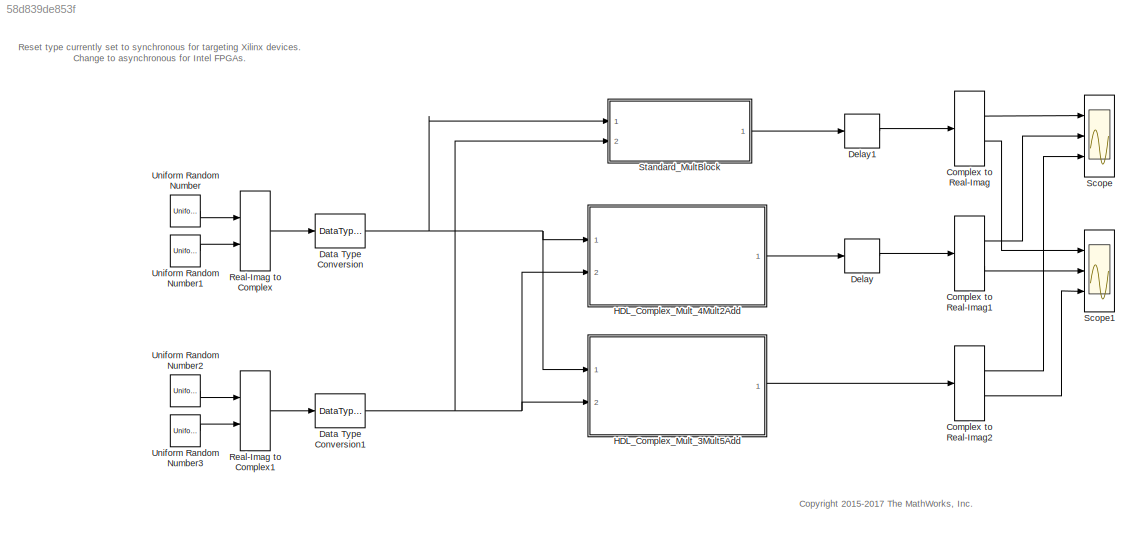
MODEL slx_58d839de853f
KIND model
CONFIG AbsTol = auto
CONFIG EnableMultiTasking = off
CONFIG FixedStep = auto
CONFIG MaxStep = auto
CONFIG MinStep = auto
CONFIG PostLoadFcn = D1 = 1;\nD2 = 1;\nD3 = 1;\nD4 = 1;\nD5 = 1;
CONFIG RelTol = 1e-3
CONFIG SampleTimeConstraint = Unconstrained
CONFIG Solver = FixedStepDiscrete
CONFIG SolverName = FixedStepDiscrete
CONFIG StartTime = 0.0
CONFIG StopTime = 20
BLOCK [ComplexToRealImag] Complex to Real-Imag
  Ports = [1, 2]
BLOCK [ComplexToRealImag] Complex to Real-Imag1
  Ports = [1, 2]
BLOCK [ComplexToRealImag] Complex to Real-Imag2
  Ports = [1, 2]
BLOCK [DataTypeConversion] Data Type Conversion
  OutDataTypeStr = fixdt(1,18,17)
  RndMeth = Floor
  SaturateOnIntegerOverflow = off
BLOCK [DataTypeConversion] Data Type Conversion1
  OutDataTypeStr = fixdt(1,18,17)
  RndMeth = Floor
  SaturateOnIntegerOverflow = off
BLOCK [Delay] Delay
  DelayLength = D2+D3
  InputPortMap = u0
  Ports = [1, 1]
BLOCK [Delay] Delay1
  DelayLength = D2+D3+D4
  InputPortMap = u0
  Ports = [1, 1]
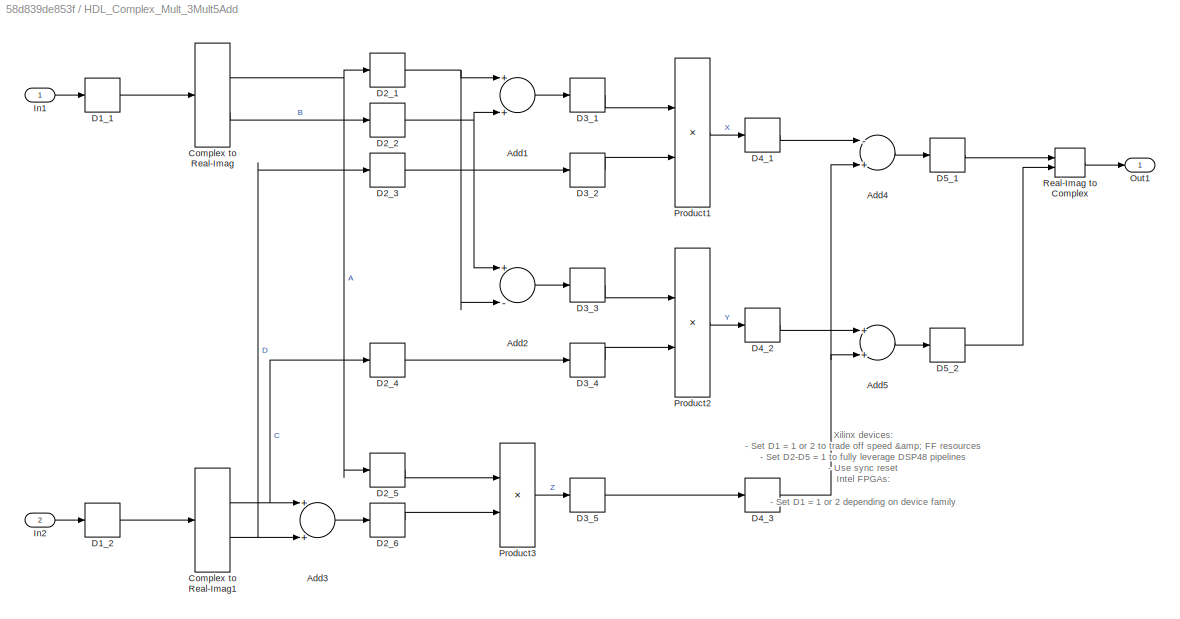
BLOCK [SubSystem] HDL_Complex_Mult_3Mult5Add
  Ports = [2, 1]
  RequestExecContextInheritance = off
BLOCK [Sum] HDL_Complex_Mult_3Mult5Add/Add1
  InputSameDT = off
  OutDataTypeStr = Inherit: Inherit via internal rule
  Ports = [2, 1]
  SaturateOnIntegerOverflow = off
BLOCK [Sum] HDL_Complex_Mult_3Mult5Add/Add2
  InputSameDT = off
  Inputs = +-
  OutDataTypeStr = Inherit: Inherit via internal rule
  Ports = [2, 1]
  SaturateOnIntegerOverflow = off
BLOCK [Sum] HDL_Complex_Mult_3Mult5Add/Add3
  InputSameDT = off
  OutDataTypeStr = Inherit: Inherit via internal rule
  Ports = [2, 1]
  SaturateOnIntegerOverflow = off
BLOCK [Sum] HDL_Complex_Mult_3Mult5Add/Add4
  InputSameDT = off
  Inputs = -+
  OutDataTypeStr = Inherit: Inherit via internal rule
  Ports = [2, 1]
  SaturateOnIntegerOverflow = off
BLOCK [Sum] HDL_Complex_Mult_3Mult5Add/Add5
  InputSameDT = off
  OutDataTypeStr = Inherit: Inherit via internal rule
  Ports = [2, 1]
  SaturateOnIntegerOverflow = off
BLOCK [ComplexToRealImag] HDL_Complex_Mult_3Mult5Add/Complex to Real-Imag
  Ports = [1, 2]
BLOCK [ComplexToRealImag] HDL_Complex_Mult_3Mult5Add/Complex to Real-Imag1
  Ports = [1, 2]
BLOCK [Delay] HDL_Complex_Mult_3Mult5Add/D1_1
  DelayLength = D1
  InputPortMap = u0
  Ports = [1, 1]
BLOCK [Delay] HDL_Complex_Mult_3Mult5Add/D1_2
  DelayLength = D1
  InputPortMap = u0
  Ports = [1, 1]
BLOCK [Delay] HDL_Complex_Mult_3Mult5Add/D2_1
  DelayLength = D2
  InputPortMap = u0
  Ports = [1, 1]
BLOCK [Delay] HDL_Complex_Mult_3Mult5Add/D2_2
  DelayLength = D2
  InputPortMap = u0
  Ports = [1, 1]
BLOCK [Delay] HDL_Complex_Mult_3Mult5Add/D2_3
  DelayLength = D2
  InputPortMap = u0
  Ports = [1, 1]
BLOCK [Delay] HDL_Complex_Mult_3Mult5Add/D2_4
  DelayLength = D2
  InputPortMap = u0
  Ports = [1, 1]
BLOCK [Delay] HDL_Complex_Mult_3Mult5Add/D2_5
  DelayLength = D2
  InputPortMap = u0
  Ports = [1, 1]
BLOCK [Delay] HDL_Complex_Mult_3Mult5Add/D2_6
  DelayLength = D2
  InputPortMap = u0
  Ports = [1, 1]
BLOCK [Delay] HDL_Complex_Mult_3Mult5Add/D3_1
  DelayLength = D3
  InputPortMap = u0
  Ports = [1, 1]
BLOCK [Delay] HDL_Complex_Mult_3Mult5Add/D3_2
  DelayLength = D3
  InputPortMap = u0
  Ports = [1, 1]
BLOCK [Delay] HDL_Complex_Mult_3Mult5Add/D3_3
  DelayLength = D3
  InputPortMap = u0
  Ports = [1, 1]
BLOCK [Delay] HDL_Complex_Mult_3Mult5Add/D3_4
  DelayLength = D3
  InputPortMap = u0
  Ports = [1, 1]
BLOCK [Delay] HDL_Complex_Mult_3Mult5Add/D3_5
  DelayLength = D3
  InputPortMap = u0
  Ports = [1, 1]
BLOCK [Delay] HDL_Complex_Mult_3Mult5Add/D4_1
  DelayLength = D4
  InputPortMap = u0
  Ports = [1, 1]
BLOCK [Delay] HDL_Complex_Mult_3Mult5Add/D4_2
  DelayLength = D4
  InputPortMap = u0
  Ports = [1, 1]
BLOCK [Delay] HDL_Complex_Mult_3Mult5Add/D4_3
  DelayLength = D4
  InputPortMap = u0
  Ports = [1, 1]
BLOCK [Delay] HDL_Complex_Mult_3Mult5Add/D5_1
  DelayLength = D5
  InputPortMap = u0
  Ports = [1, 1]
BLOCK [Delay] HDL_Complex_Mult_3Mult5Add/D5_2
  DelayLength = D5
  InputPortMap = u0
  Ports = [1, 1]
BLOCK [Inport] HDL_Complex_Mult_3Mult5Add/In1
  IconDisplay = Port number
BLOCK [Inport] HDL_Complex_Mult_3Mult5Add/In2
  IconDisplay = Port number
  Port = 2
BLOCK [Outport] HDL_Complex_Mult_3Mult5Add/Out1
  IconDisplay = Port number
BLOCK [Product] HDL_Complex_Mult_3Mult5Add/Product1
  InputSameDT = off
  OutDataTypeStr = Inherit: Inherit via internal rule
  Ports = [2, 1]
  RndMeth = Floor
  SaturateOnIntegerOverflow = off
BLOCK [Product] HDL_Complex_Mult_3Mult5Add/Product2
  InputSameDT = off
  OutDataTypeStr = Inherit: Inherit via internal rule
  Ports = [2, 1]
  RndMeth = Floor
  SaturateOnIntegerOverflow = off
BLOCK [Product] HDL_Complex_Mult_3Mult5Add/Product3
  InputSameDT = off
  OutDataTypeStr = Inherit: Inherit via internal rule
  Ports = [2, 1]
  RndMeth = Floor
  SaturateOnIntegerOverflow = off
BLOCK [RealImagToComplex] HDL_Complex_Mult_3Mult5Add/Real-Imag to Complex
  Ports = [2, 1]
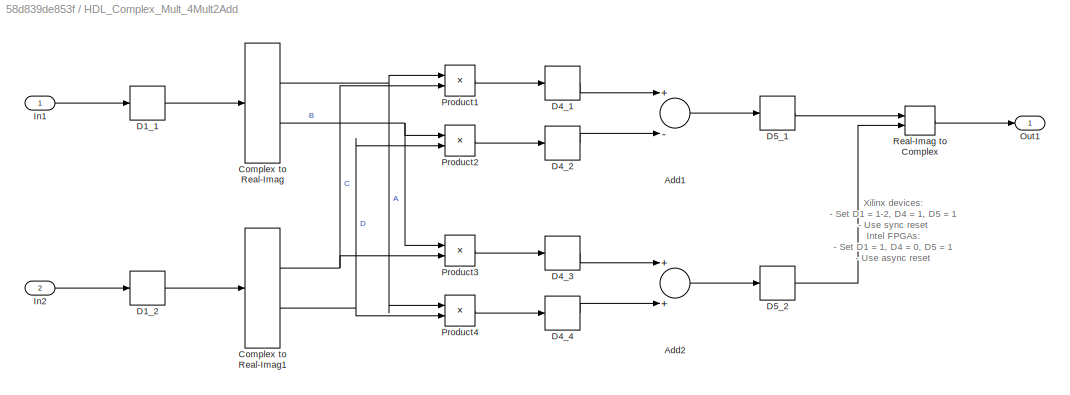
BLOCK [SubSystem] HDL_Complex_Mult_4Mult2Add
  Ports = [2, 1]
  RequestExecContextInheritance = off
BLOCK [Sum] HDL_Complex_Mult_4Mult2Add/Add1
  InputSameDT = off
  Inputs = +-
  OutDataTypeStr = Inherit: Inherit via internal rule
  Ports = [2, 1]
  SaturateOnIntegerOverflow = off
BLOCK [Sum] HDL_Complex_Mult_4Mult2Add/Add2
  InputSameDT = off
  OutDataTypeStr = Inherit: Inherit via internal rule
  Ports = [2, 1]
  SaturateOnIntegerOverflow = off
BLOCK [ComplexToRealImag] HDL_Complex_Mult_4Mult2Add/Complex to Real-Imag
  Ports = [1, 2]
BLOCK [ComplexToRealImag] HDL_Complex_Mult_4Mult2Add/Complex to Real-Imag1
  Ports = [1, 2]
BLOCK [Delay] HDL_Complex_Mult_4Mult2Add/D1_1
  DelayLength = D1
  InputPortMap = u0
  Ports = [1, 1]
BLOCK [Delay] HDL_Complex_Mult_4Mult2Add/D1_2
  DelayLength = D1
  InputPortMap = u0
  Ports = [1, 1]
BLOCK [Delay] HDL_Complex_Mult_4Mult2Add/D4_1
  DelayLength = D4
  InputPortMap = u0
  Ports = [1, 1]
BLOCK [Delay] HDL_Complex_Mult_4Mult2Add/D4_2
  DelayLength = D4
  InputPortMap = u0
  Ports = [1, 1]
BLOCK [Delay] HDL_Complex_Mult_4Mult2Add/D4_3
  DelayLength = D4
  InputPortMap = u0
  Ports = [1, 1]
BLOCK [Delay] HDL_Complex_Mult_4Mult2Add/D4_4
  DelayLength = D4
  InputPortMap = u0
  Ports = [1, 1]
BLOCK [Delay] HDL_Complex_Mult_4Mult2Add/D5_1
  DelayLength = D5
  InputPortMap = u0
  Ports = [1, 1]
BLOCK [Delay] HDL_Complex_Mult_4Mult2Add/D5_2
  DelayLength = D5
  InputPortMap = u0
  Ports = [1, 1]
BLOCK [Inport] HDL_Complex_Mult_4Mult2Add/In1
  IconDisplay = Port number
BLOCK [Inport] HDL_Complex_Mult_4Mult2Add/In2
  IconDisplay = Port number
  Port = 2
BLOCK [Outport] HDL_Complex_Mult_4Mult2Add/Out1
  IconDisplay = Port number
BLOCK [Product] HDL_Complex_Mult_4Mult2Add/Product1
  InputSameDT = off
  OutDataTypeStr = Inherit: Inherit via internal rule
  Ports = [2, 1]
  RndMeth = Floor
  SaturateOnIntegerOverflow = off
BLOCK [Product] HDL_Complex_Mult_4Mult2Add/Product2
  InputSameDT = off
  OutDataTypeStr = Inherit: Inherit via internal rule
  Ports = [2, 1]
  RndMeth = Floor
  SaturateOnIntegerOverflow = off
BLOCK [Product] HDL_Complex_Mult_4Mult2Add/Product3
  InputSameDT = off
  OutDataTypeStr = Inherit: Inherit via internal rule
  Ports = [2, 1]
  RndMeth = Floor
  SaturateOnIntegerOverflow = off
BLOCK [Product] HDL_Complex_Mult_4Mult2Add/Product4
  InputSameDT = off
  OutDataTypeStr = Inherit: Inherit via internal rule
  Ports = [2, 1]
  RndMeth = Floor
  SaturateOnIntegerOverflow = off
BLOCK [RealImagToComplex] HDL_Complex_Mult_4Mult2Add/Real-Imag to Complex
  Ports = [2, 1]
BLOCK [RealImagToComplex] Real-Imag to Complex
  Ports = [2, 1]
BLOCK [RealImagToComplex] Real-Imag to Complex1
  Ports = [2, 1]
BLOCK [Scope] Scope
  Floating = off
  NumInputPorts = 3
  Ports = [3]
  ScopeSpecificationString = Simulink.scopes.TimeScopeBlockCfg('CurrentConfiguration', extmgr.ConfigurationSet(extmgr.Configuration('Core','General UI',true),extmgr.Configuration('Core','Source UI',true),extmgr.Configuration('Sources','WiredSimulink',true),extmgr.Configuration('Visuals','Time Domain',true,'SerializedDisplays',{struct('MinYLimReal','-0.79406','MaxYLimReal','0.84396','YLabelReal','','MinYLimMag','0.00000','MaxY...<+1401ch>
BLOCK [Scope] Scope1
  Floating = off
  NumInputPorts = 3
  Ports = [3]
  ScopeSpecificationString = Simulink.scopes.TimeScopeBlockCfg('CurrentConfiguration', extmgr.ConfigurationSet(extmgr.Configuration('Core','General UI',true),extmgr.Configuration('Core','Source UI',true),extmgr.Configuration('Sources','WiredSimulink',true,'DataLoggingVariableName','ScopeData1'),extmgr.Configuration('Visuals','Time Domain',true,'SerializedDisplays',{struct('MinYLimReal','-0.09028','MaxYLimReal','0.81255','YLab...<+1415ch>
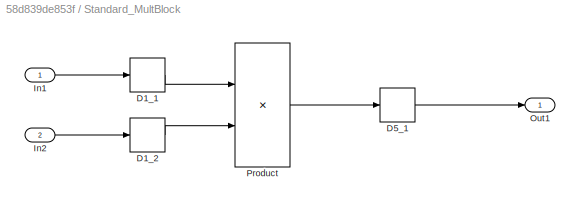
BLOCK [SubSystem] Standard_MultBlock
  Ports = [2, 1]
  RequestExecContextInheritance = off
BLOCK [Delay] Standard_MultBlock/D1_1
  DelayLength = D1
  InputPortMap = u0
  Ports = [1, 1]
BLOCK [Delay] Standard_MultBlock/D1_2
  DelayLength = D1
  InputPortMap = u0
  Ports = [1, 1]
BLOCK [Delay] Standard_MultBlock/D5_1
  DelayLength = D5
  InputPortMap = u0
  Ports = [1, 1]
BLOCK [Inport] Standard_MultBlock/In1
  IconDisplay = Port number
BLOCK [Inport] Standard_MultBlock/In2
  IconDisplay = Port number
  Port = 2
BLOCK [Outport] Standard_MultBlock/Out1
  IconDisplay = Port number
BLOCK [Product] Standard_MultBlock/Product
  InputSameDT = off
  OutDataTypeStr = fixdt(1,37,34)
  Ports = [2, 1]
  RndMeth = Floor
  SaturateOnIntegerOverflow = off
BLOCK [UniformRandomNumber] Uniform Random Number
  Minimum = 0
  SampleTime = 1
BLOCK [UniformRandomNumber] Uniform Random Number1
  Minimum = 0
  SampleTime = 1
  Seed = 1
BLOCK [UniformRandomNumber] Uniform Random Number2
  Minimum = 0
  SampleTime = 1
  Seed = 2
BLOCK [UniformRandomNumber] Uniform Random Number3
  Minimum = 0
  SampleTime = 1
  Seed = 3
ANNOTATION (root): Reset type currently set to synchronous for targeting Xilinx devices. Change to asynchronous for Intel FPGAs.
ANNOTATION (root): <copyright redacted>
ANNOTATION HDL_Complex_Mult_3Mult5Add: Xilinx devices: - Set D1 = 1 or 2 to trade off speed & FF resources - Set D2-D5 = 1 to fully leverage DSP48 pipelines - Use sync reset Intel FPGAs: - Set D1 = 1 or 2 depending on device family - Set D5 = 1; D2, D3, D4 = 0 - Use async reset
ANNOTATION HDL_Complex_Mult_4Mult2Add: Xilinx devices: - Set D1 = 1-2, D4 = 1, D5 = 1 - Use sync reset Intel FPGAs: - Set D1 = 1, D4 = 0, D5 = 1 - Use async reset
LINE Complex to Real-Imag1:1 -> Scope:2
LINE Complex to Real-Imag1:2 -> Scope1:2
LINE Complex to Real-Imag2:1 -> Scope:3
LINE Complex to Real-Imag2:2 -> Scope1:3
LINE Complex to Real-Imag:1 -> Scope:1
LINE Complex to Real-Imag:2 -> Scope1:1
NET Data Type Conversion1:1 -> HDL_Complex_Mult_3Mult5Add:2, HDL_Complex_Mult_4Mult2Add:2, Standard_MultBlock:2
NET Data Type Conversion:1 -> HDL_Complex_Mult_3Mult5Add:1, HDL_Complex_Mult_4Mult2Add:1, Standard_MultBlock:1
LINE Delay1:1 -> Complex to Real-Imag:1
LINE Delay:1 -> Complex to Real-Imag1:1
LINE HDL_Complex_Mult_3Mult5Add/Add1:1 -> HDL_Complex_Mult_3Mult5Add/D3_1:1
LINE HDL_Complex_Mult_3Mult5Add/Add2:1 -> HDL_Complex_Mult_3Mult5Add/D3_3:1
LINE HDL_Complex_Mult_3Mult5Add/Add3:1 -> HDL_Complex_Mult_3Mult5Add/D2_6:1
LINE HDL_Complex_Mult_3Mult5Add/Add4:1 -> HDL_Complex_Mult_3Mult5Add/D5_1:1
LINE HDL_Complex_Mult_3Mult5Add/Add5:1 -> HDL_Complex_Mult_3Mult5Add/D5_2:1
NET HDL_Complex_Mult_3Mult5Add/Complex to Real-Imag1:1 -> HDL_Complex_Mult_3Mult5Add/Add3:1, HDL_Complex_Mult_3Mult5Add/D2_4:1
NET HDL_Complex_Mult_3Mult5Add/Complex to Real-Imag1:2 -> HDL_Complex_Mult_3Mult5Add/Add3:2, HDL_Complex_Mult_3Mult5Add/D2_3:1
NET HDL_Complex_Mult_3Mult5Add/Complex to Real-Imag:1 -> HDL_Complex_Mult_3Mult5Add/D2_1:1, HDL_Complex_Mult_3Mult5Add/D2_5:1
LINE HDL_Complex_Mult_3Mult5Add/Complex to Real-Imag:2 -> HDL_Complex_Mult_3Mult5Add/D2_2:1
LINE HDL_Complex_Mult_3Mult5Add/D1_1:1 -> HDL_Complex_Mult_3Mult5Add/Complex to Real-Imag:1
LINE HDL_Complex_Mult_3Mult5Add/D1_2:1 -> HDL_Complex_Mult_3Mult5Add/Complex to Real-Imag1:1
NET HDL_Complex_Mult_3Mult5Add/D2_1:1 -> HDL_Complex_Mult_3Mult5Add/Add1:1, HDL_Complex_Mult_3Mult5Add/Add2:2
NET HDL_Complex_Mult_3Mult5Add/D2_2:1 -> HDL_Complex_Mult_3Mult5Add/Add1:2, HDL_Complex_Mult_3Mult5Add/Add2:1
LINE HDL_Complex_Mult_3Mult5Add/D2_3:1 -> HDL_Complex_Mult_3Mult5Add/D3_2:1
LINE HDL_Complex_Mult_3Mult5Add/D2_4:1 -> HDL_Complex_Mult_3Mult5Add/D3_4:1
LINE HDL_Complex_Mult_3Mult5Add/D2_5:1 -> HDL_Complex_Mult_3Mult5Add/Product3:1
LINE HDL_Complex_Mult_3Mult5Add/D2_6:1 -> HDL_Complex_Mult_3Mult5Add/Product3:2
LINE HDL_Complex_Mult_3Mult5Add/D3_1:1 -> HDL_Complex_Mult_3Mult5Add/Product1:1
LINE HDL_Complex_Mult_3Mult5Add/D3_2:1 -> HDL_Complex_Mult_3Mult5Add/Product1:2
LINE HDL_Complex_Mult_3Mult5Add/D3_3:1 -> HDL_Complex_Mult_3Mult5Add/Product2:1
LINE HDL_Complex_Mult_3Mult5Add/D3_4:1 -> HDL_Complex_Mult_3Mult5Add/Product2:2
LINE HDL_Complex_Mult_3Mult5Add/D3_5:1 -> HDL_Complex_Mult_3Mult5Add/D4_3:1
LINE HDL_Complex_Mult_3Mult5Add/D4_1:1 -> HDL_Complex_Mult_3Mult5Add/Add4:1
LINE HDL_Complex_Mult_3Mult5Add/D4_2:1 -> HDL_Complex_Mult_3Mult5Add/Add5:1
NET HDL_Complex_Mult_3Mult5Add/D4_3:1 -> HDL_Complex_Mult_3Mult5Add/Add4:2, HDL_Complex_Mult_3Mult5Add/Add5:2
LINE HDL_Complex_Mult_3Mult5Add/D5_1:1 -> HDL_Complex_Mult_3Mult5Add/Real-Imag to Complex:1
LINE HDL_Complex_Mult_3Mult5Add/D5_2:1 -> HDL_Complex_Mult_3Mult5Add/Real-Imag to Complex:2
LINE HDL_Complex_Mult_3Mult5Add/In1:1 -> HDL_Complex_Mult_3Mult5Add/D1_1:1
LINE HDL_Complex_Mult_3Mult5Add/In2:1 -> HDL_Complex_Mult_3Mult5Add/D1_2:1
LINE HDL_Complex_Mult_3Mult5Add/Product1:1 -> HDL_Complex_Mult_3Mult5Add/D4_1:1
LINE HDL_Complex_Mult_3Mult5Add/Product2:1 -> HDL_Complex_Mult_3Mult5Add/D4_2:1
LINE HDL_Complex_Mult_3Mult5Add/Product3:1 -> HDL_Complex_Mult_3Mult5Add/D3_5:1
LINE HDL_Complex_Mult_3Mult5Add/Real-Imag to Complex:1 -> HDL_Complex_Mult_3Mult5Add/Out1:1
LINE HDL_Complex_Mult_3Mult5Add:1 -> Complex to Real-Imag2:1
LINE HDL_Complex_Mult_4Mult2Add/Add1:1 -> HDL_Complex_Mult_4Mult2Add/D5_1:1
LINE HDL_Complex_Mult_4Mult2Add/Add2:1 -> HDL_Complex_Mult_4Mult2Add/D5_2:1
NET HDL_Complex_Mult_4Mult2Add/Complex to Real-Imag1:1 -> HDL_Complex_Mult_4Mult2Add/Product1:2, HDL_Complex_Mult_4Mult2Add/Product3:2
NET HDL_Complex_Mult_4Mult2Add/Complex to Real-Imag1:2 -> HDL_Complex_Mult_4Mult2Add/Product2:2, HDL_Complex_Mult_4Mult2Add/Product4:2
NET HDL_Complex_Mult_4Mult2Add/Complex to Real-Imag:1 -> HDL_Complex_Mult_4Mult2Add/Product1:1, HDL_Complex_Mult_4Mult2Add/Product4:1
NET HDL_Complex_Mult_4Mult2Add/Complex to Real-Imag:2 -> HDL_Complex_Mult_4Mult2Add/Product2:1, HDL_Complex_Mult_4Mult2Add/Product3:1
LINE HDL_Complex_Mult_4Mult2Add/D1_1:1 -> HDL_Complex_Mult_4Mult2Add/Complex to Real-Imag:1
LINE HDL_Complex_Mult_4Mult2Add/D1_2:1 -> HDL_Complex_Mult_4Mult2Add/Complex to Real-Imag1:1
LINE HDL_Complex_Mult_4Mult2Add/D4_1:1 -> HDL_Complex_Mult_4Mult2Add/Add1:1
LINE HDL_Complex_Mult_4Mult2Add/D4_2:1 -> HDL_Complex_Mult_4Mult2Add/Add1:2
LINE HDL_Complex_Mult_4Mult2Add/D4_3:1 -> HDL_Complex_Mult_4Mult2Add/Add2:1
LINE HDL_Complex_Mult_4Mult2Add/D4_4:1 -> HDL_Complex_Mult_4Mult2Add/Add2:2
LINE HDL_Complex_Mult_4Mult2Add/D5_1:1 -> HDL_Complex_Mult_4Mult2Add/Real-Imag to Complex:1
LINE HDL_Complex_Mult_4Mult2Add/D5_2:1 -> HDL_Complex_Mult_4Mult2Add/Real-Imag to Complex:2
LINE HDL_Complex_Mult_4Mult2Add/In1:1 -> HDL_Complex_Mult_4Mult2Add/D1_1:1
LINE HDL_Complex_Mult_4Mult2Add/In2:1 -> HDL_Complex_Mult_4Mult2Add/D1_2:1
LINE HDL_Complex_Mult_4Mult2Add/Product1:1 -> HDL_Complex_Mult_4Mult2Add/D4_1:1
LINE HDL_Complex_Mult_4Mult2Add/Product2:1 -> HDL_Complex_Mult_4Mult2Add/D4_2:1
LINE HDL_Complex_Mult_4Mult2Add/Product3:1 -> HDL_Complex_Mult_4Mult2Add/D4_3:1
LINE HDL_Complex_Mult_4Mult2Add/Product4:1 -> HDL_Complex_Mult_4Mult2Add/D4_4:1
LINE HDL_Complex_Mult_4Mult2Add/Real-Imag to Complex:1 -> HDL_Complex_Mult_4Mult2Add/Out1:1
LINE HDL_Complex_Mult_4Mult2Add:1 -> Delay:1
LINE Real-Imag to Complex1:1 -> Data Type Conversion1:1
LINE Real-Imag to Complex:1 -> Data Type Conversion:1
LINE Standard_MultBlock/D1_1:1 -> Standard_MultBlock/Product:1
LINE Standard_MultBlock/D1_2:1 -> Standard_MultBlock/Product:2
LINE Standard_MultBlock/D5_1:1 -> Standard_MultBlock/Out1:1
LINE Standard_MultBlock/In1:1 -> Standard_MultBlock/D1_1:1
LINE Standard_MultBlock/In2:1 -> Standard_MultBlock/D1_2:1
LINE Standard_MultBlock/Product:1 -> Standard_MultBlock/D5_1:1
LINE Standard_MultBlock:1 -> Delay1:1
LINE Uniform Random Number1:1 -> Real-Imag to Complex:2
LINE Uniform Random Number2:1 -> Real-Imag to Complex1:1
LINE Uniform Random Number3:1 -> Real-Imag to Complex1:2
LINE Uniform Random Number:1 -> Real-Imag to Complex:1
note: NET lines group one-source signal fan-out (src -> all destinations, sorted); 1:1 wires keep LINE
